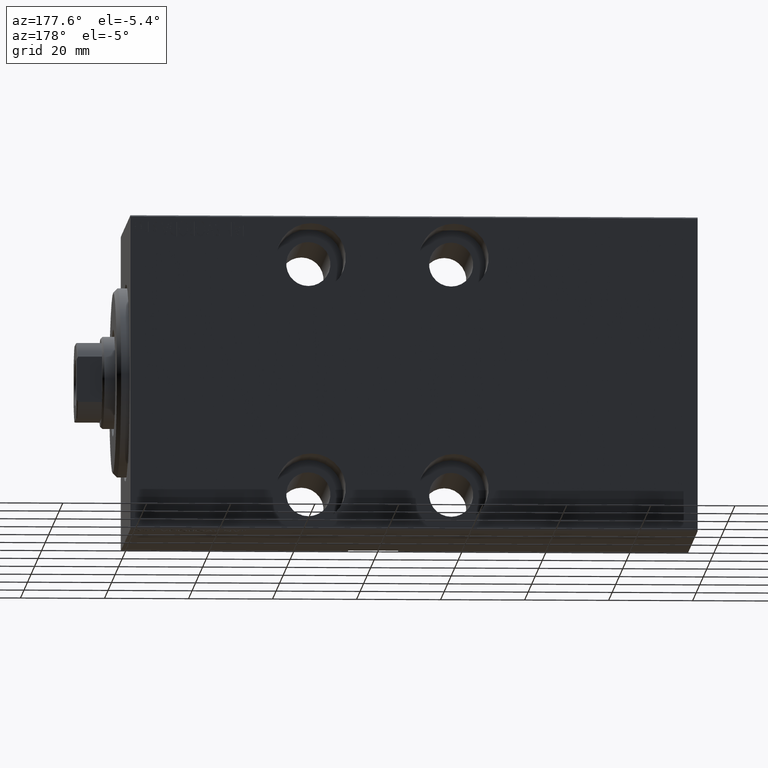
[diagram: clean part render]
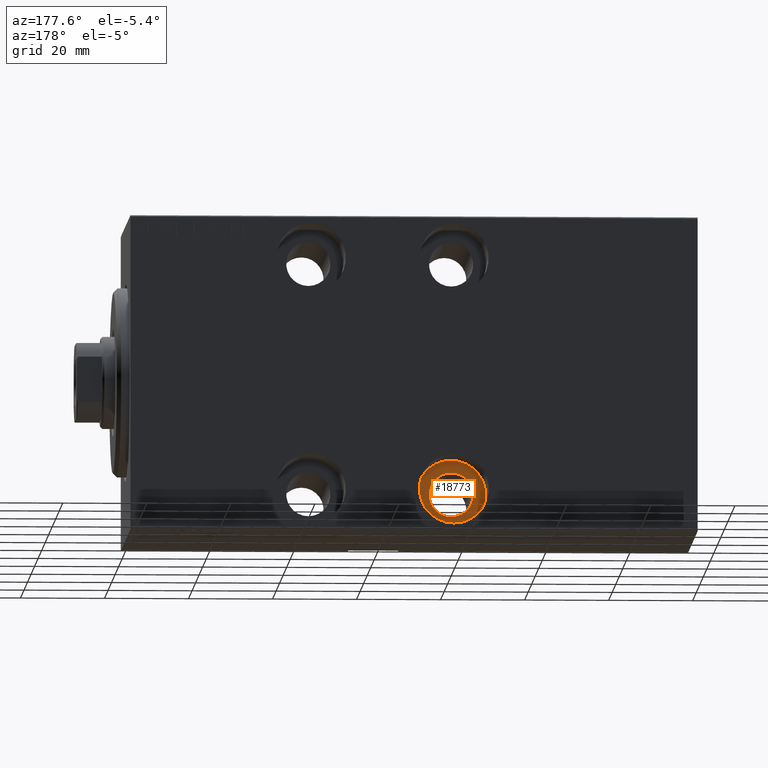
[diagram: same view with one face highlighted and labeled with its STEP entity id]
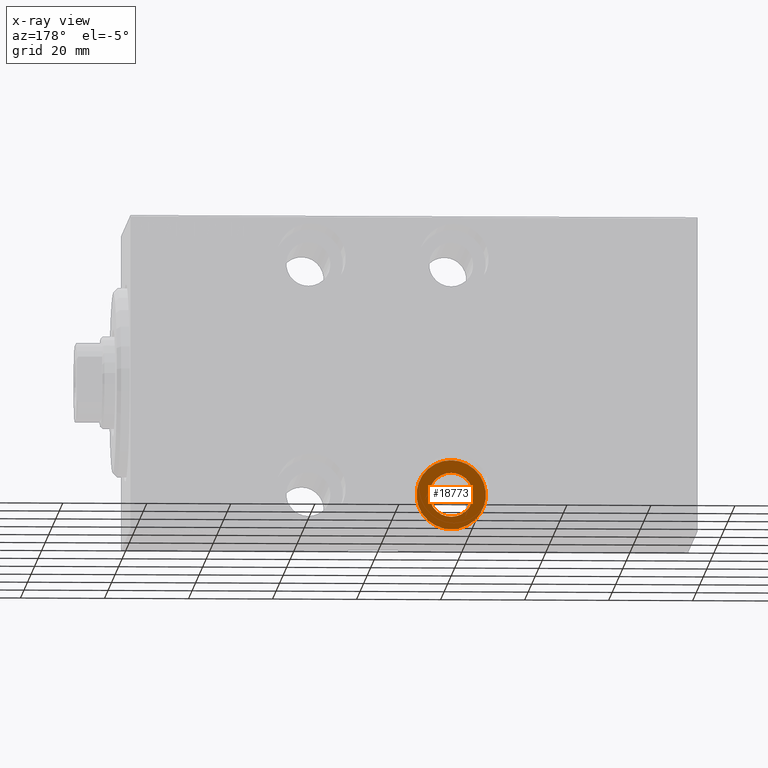
[diagram: x-ray of the same camera — body ghosted, the highlighted face saturated]
A machine part, auxiliary view. The second image highlights one B-rep face of the part: STEP entity #18773.
The next image is the same camera in x-ray: the body ghosted, the highlighted face saturated — about 0% of this face is hidden behind the body in this view.
In plain terms, the highlighted planar face has unit normal (-0, 1, 0).
Its self-contained STEP definition (entity closure, byte-faithful):
#73 = EDGE_CURVE ( 'NONE', #8060, #1981, #32612, .T. ) ;
#966 = CARTESIAN_POINT ( 'NONE',  ( 77.00000000000000000, -11.49999999999999645, -35.75000000000000000 ) ) ;
#1227 = CIRCLE ( 'NONE', #4773, 5.250000000000000888 ) ;
#1981 = VERTEX_POINT ( 'NONE', #966 ) ;
#3271 = DIRECTION ( 'NONE',  ( 0.000000000000000000, 0.000000000000000000, -1.000000000000000000 ) ) ;
#4029 = ORIENTED_EDGE ( 'NONE', *, *, #73, .T. ) ;
#4681 = CARTESIAN_POINT ( 'NONE',  ( 77.00000000000000000, -11.49999999999999645, -27.50000000000000000 ) ) ;
#4773 = AXIS2_PLACEMENT_3D ( 'NONE', #7456, #14097, #41317 ) ;
#5082 = CARTESIAN_POINT ( 'NONE',  ( 77.00000000000000000, -11.49999999999999645, -32.75000000000000000 ) ) ;
#7456 = CARTESIAN_POINT ( 'NONE',  ( 77.00000000000000000, -11.49999999999999645, -27.50000000000000000 ) ) ;
#8060 = VERTEX_POINT ( 'NONE', #25252 ) ;
#8540 = EDGE_LOOP ( 'NONE', ( #28587, #15646 ) ) ;
#8895 = AXIS2_PLACEMENT_3D ( 'NONE', #34072, #36521, #40498 ) ;
#9172 = CIRCLE ( 'NONE', #9814, 5.250000000000000888 ) ;
#9814 = AXIS2_PLACEMENT_3D ( 'NONE', #4681, #14868, #3271 ) ;
#12840 = AXIS2_PLACEMENT_3D ( 'NONE', #14969, #38199, #28229 ) ;
#14097 = DIRECTION ( 'NONE',  ( -0.000000000000000000, 1.000000000000000000, -0.000000000000000000 ) ) ;
#14868 = DIRECTION ( 'NONE',  ( -0.000000000000000000, 1.000000000000000000, -0.000000000000000000 ) ) ;
#14969 = CARTESIAN_POINT ( 'NONE',  ( 77.00000000000000000, -11.49999999999999645, -27.50000000000000000 ) ) ;
#15512 = CIRCLE ( 'NONE', #29627, 8.249999999999996447 ) ;
#15646 = ORIENTED_EDGE ( 'NONE', *, *, #25291, .T. ) ;
#18773 = ADVANCED_FACE ( 'NONE', ( #26771, #33852 ), #26551, .T. ) ;
#21527 = CARTESIAN_POINT ( 'NONE',  ( 77.00000000000000000, -11.49999999999999645, -27.50000000000000000 ) ) ;
#25252 = CARTESIAN_POINT ( 'NONE',  ( 77.00000000000000000, -11.49999999999999645, -19.25000000000000355 ) ) ;
#25291 = EDGE_CURVE ( 'NONE', #42782, #28170, #1227, .T. ) ;
#26551 = PLANE ( 'NONE',  #8895 ) ;
#26771 = FACE_OUTER_BOUND ( 'NONE', #34536, .T. ) ;
#28170 = VERTEX_POINT ( 'NONE', #39397 ) ;
#28229 = DIRECTION ( 'NONE',  ( 0.000000000000000000, 0.000000000000000000, -1.000000000000000000 ) ) ;
#28385 = DIRECTION ( 'NONE',  ( 0.000000000000000000, 0.000000000000000000, -1.000000000000000000 ) ) ;
#28587 = ORIENTED_EDGE ( 'NONE', *, *, #31847, .T. ) ;
#29354 = EDGE_CURVE ( 'NONE', #1981, #8060, #15512, .T. ) ;
#29627 = AXIS2_PLACEMENT_3D ( 'NONE', #21527, #35679, #28385 ) ;
#31847 = EDGE_CURVE ( 'NONE', #28170, #42782, #9172, .T. ) ;
#32612 = CIRCLE ( 'NONE', #12840, 8.249999999999996447 ) ;
#33852 = FACE_BOUND ( 'NONE', #8540, .T. ) ;
#34072 = CARTESIAN_POINT ( 'NONE',  ( 77.00000000000000000, -11.49999999999999645, -27.50000000000000000 ) ) ;
#34536 = EDGE_LOOP ( 'NONE', ( #36070, #4029 ) ) ;
#35679 = DIRECTION ( 'NONE',  ( 0.000000000000000000, -1.000000000000000000, 0.000000000000000000 ) ) ;
#36070 = ORIENTED_EDGE ( 'NONE', *, *, #29354, .T. ) ;
#36521 = DIRECTION ( 'NONE',  ( 0.000000000000000000, -1.000000000000000000, 0.000000000000000000 ) ) ;
#38199 = DIRECTION ( 'NONE',  ( 0.000000000000000000, -1.000000000000000000, 0.000000000000000000 ) ) ;
#39397 = CARTESIAN_POINT ( 'NONE',  ( 77.00000000000000000, -11.49999999999999645, -22.24999999999999645 ) ) ;
#40498 = DIRECTION ( 'NONE',  ( 0.000000000000000000, -0.000000000000000000, -1.000000000000000000 ) ) ;
#41317 = DIRECTION ( 'NONE',  ( 0.000000000000000000, 0.000000000000000000, -1.000000000000000000 ) ) ;
#42782 = VERTEX_POINT ( 'NONE', #5082 ) ;